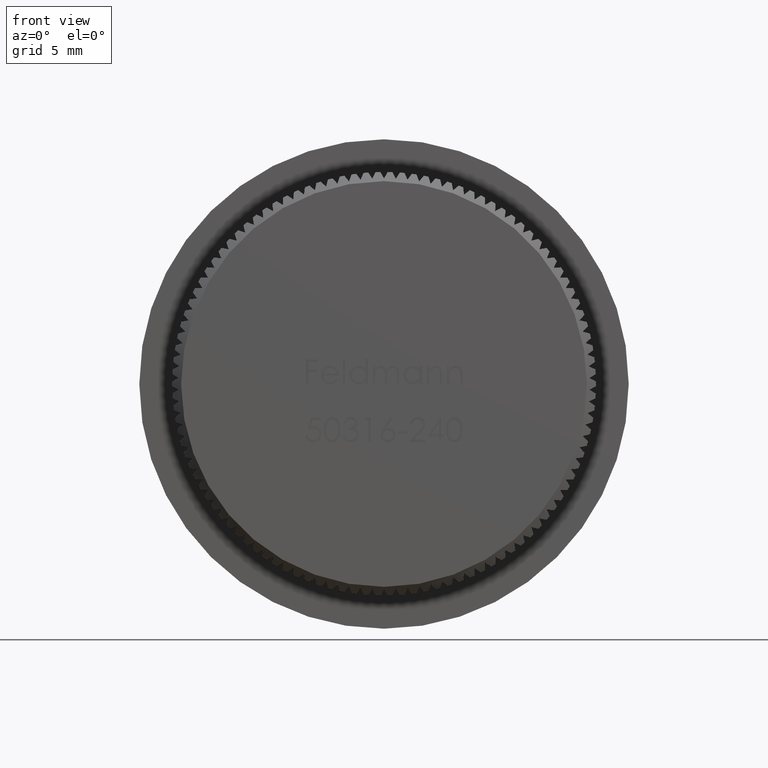
[diagram: clean part render]
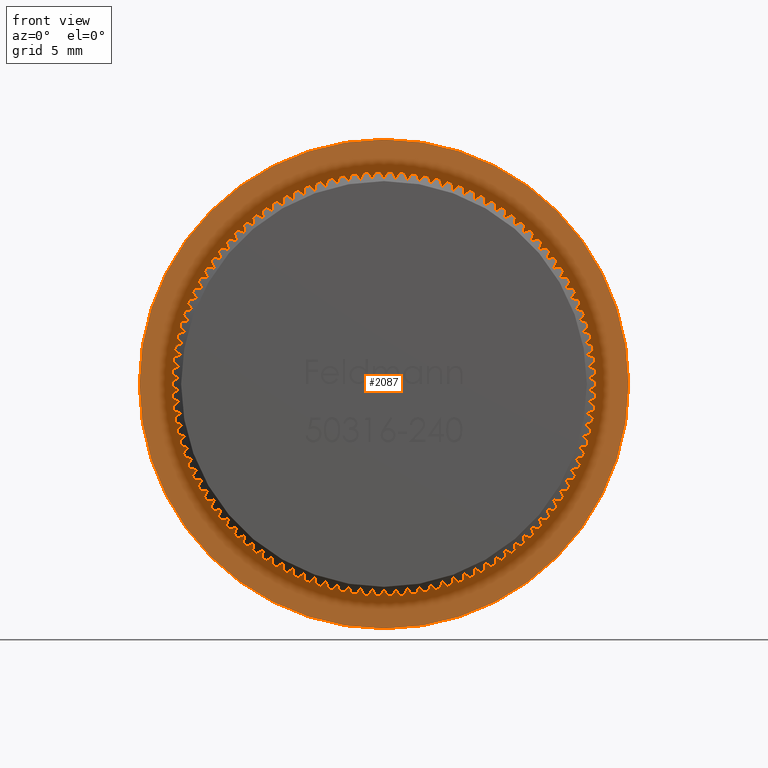
[diagram: same view with one face highlighted and labeled with its STEP entity id]
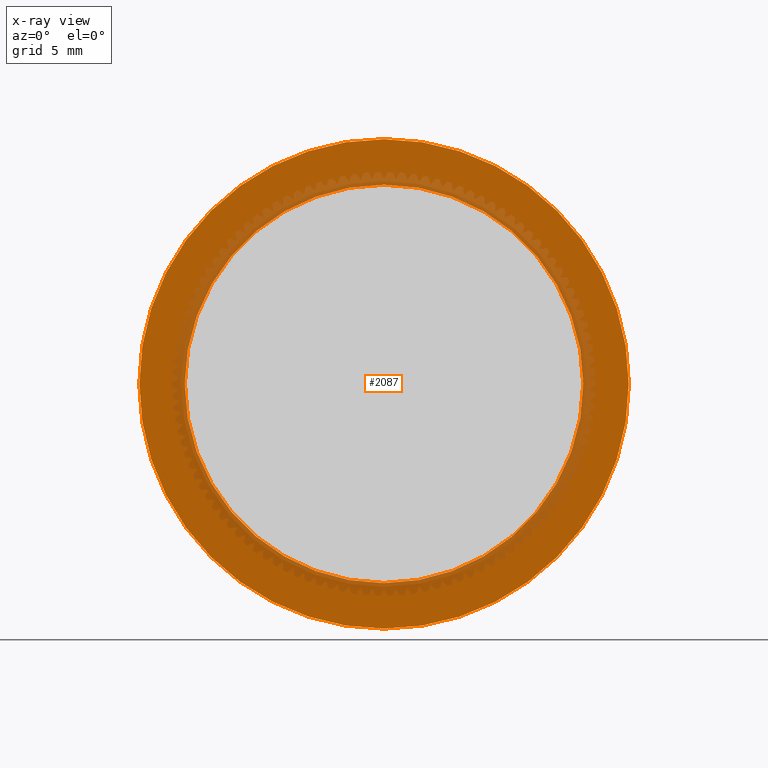
[diagram: x-ray of the same camera — body ghosted, the highlighted face saturated]
A machine part, front view. The second image highlights one B-rep face of the part: STEP entity #2087.
The next image is the same camera in x-ray: the body ghosted, the highlighted face saturated — about 23% of this face is hidden behind the body in this view.
In plain terms, the highlighted planar face has unit normal (0, -1, -0).
Its self-contained STEP definition (entity closure, byte-faithful):
#712 = VERTEX_POINT ( 'NONE', #13868 ) ;
#2087 = ADVANCED_FACE ( 'NONE', ( #10606, #19739 ), #22100, .T. ) ;
#2604 = EDGE_CURVE ( 'NONE', #712, #7014, #24415, .T. ) ;
#3321 = DIRECTION ( 'NONE',  ( 0.0000000000000000000, -1.000000000000000000, -0.0000000000000000000 ) ) ;
#3363 = AXIS2_PLACEMENT_3D ( 'NONE', #20421, #7273, #9156 ) ;
#3727 = CARTESIAN_POINT ( 'NONE',  ( 1.383850883036509300E-015, 7.000000000000000900, 10.95000000000000100 ) ) ;
#4809 = AXIS2_PLACEMENT_3D ( 'NONE', #11442, #13314, #20898 ) ;
#5323 = EDGE_CURVE ( 'NONE', #14627, #6722, #21172, .T. ) ;
#6237 = DIRECTION ( 'NONE',  ( 0.0000000000000000000, 0.0000000000000000000, -1.000000000000000000 ) ) ;
#6255 = ORIENTED_EDGE ( 'NONE', *, *, #2604, .T. ) ;
#6722 = VERTEX_POINT ( 'NONE', #23988 ) ;
#7014 = VERTEX_POINT ( 'NONE', #15273 ) ;
#7273 = DIRECTION ( 'NONE',  ( -0.0000000000000000000, -1.000000000000000000, -0.0000000000000000000 ) ) ;
#7597 = CIRCLE ( 'NONE', #3363, 13.44999999999999900 ) ;
#8685 = CIRCLE ( 'NONE', #4809, 10.95000000000000100 ) ;
#8787 = CARTESIAN_POINT ( 'NONE',  ( 10.95000000000000100, 7.000000000000000900, 0.0000000000000000000 ) ) ;
#9156 = DIRECTION ( 'NONE',  ( 0.0000000000000000000, 0.0000000000000000000, -1.000000000000000000 ) ) ;
#10107 = ORIENTED_EDGE ( 'NONE', *, *, #18368, .T. ) ;
#10606 = FACE_OUTER_BOUND ( 'NONE', #12108, .T. ) ;
#11442 = CARTESIAN_POINT ( 'NONE',  ( 0.0000000000000000000, 7.000000000000000900, 0.0000000000000000000 ) ) ;
#12108 = EDGE_LOOP ( 'NONE', ( #10107, #6255 ) ) ;
#13279 = AXIS2_PLACEMENT_3D ( 'NONE', #8787, #3321, #20306 ) ;
#13314 = DIRECTION ( 'NONE',  ( -0.0000000000000000000, -1.000000000000000000, -0.0000000000000000000 ) ) ;
#13868 = CARTESIAN_POINT ( 'NONE',  ( 1.647149944853190000E-015, 7.000000000000000000, 13.44999999999999900 ) ) ;
#14442 = CARTESIAN_POINT ( 'NONE',  ( 0.0000000000000000000, 7.000000000000000000, 0.0000000000000000000 ) ) ;
#14537 = AXIS2_PLACEMENT_3D ( 'NONE', #14442, #16598, #18250 ) ;
#14627 = VERTEX_POINT ( 'NONE', #3727 ) ;
#15273 = CARTESIAN_POINT ( 'NONE',  ( 0.0000000000000000000, 7.000000000000000000, -13.44999999999999900 ) ) ;
#16598 = DIRECTION ( 'NONE',  ( -0.0000000000000000000, -1.000000000000000000, -0.0000000000000000000 ) ) ;
#16800 = AXIS2_PLACEMENT_3D ( 'NONE', #17430, #22920, #6237 ) ;
#17102 = EDGE_LOOP ( 'NONE', ( #17810, #19442 ) ) ;
#17430 = CARTESIAN_POINT ( 'NONE',  ( 0.0000000000000000000, 7.000000000000000900, 0.0000000000000000000 ) ) ;
#17810 = ORIENTED_EDGE ( 'NONE', *, *, #20299, .F. ) ;
#18250 = DIRECTION ( 'NONE',  ( 0.0000000000000000000, 0.0000000000000000000, -1.000000000000000000 ) ) ;
#18368 = EDGE_CURVE ( 'NONE', #7014, #712, #7597, .T. ) ;
#19442 = ORIENTED_EDGE ( 'NONE', *, *, #5323, .F. ) ;
#19739 = FACE_BOUND ( 'NONE', #17102, .T. ) ;
#20299 = EDGE_CURVE ( 'NONE', #6722, #14627, #8685, .T. ) ;
#20306 = DIRECTION ( 'NONE',  ( 0.0000000000000000000, 0.0000000000000000000, -1.000000000000000000 ) ) ;
#20421 = CARTESIAN_POINT ( 'NONE',  ( 0.0000000000000000000, 7.000000000000000000, 0.0000000000000000000 ) ) ;
#20898 = DIRECTION ( 'NONE',  ( 0.0000000000000000000, 0.0000000000000000000, -1.000000000000000000 ) ) ;
#21172 = CIRCLE ( 'NONE', #16800, 10.95000000000000100 ) ;
#22100 = PLANE ( 'NONE',  #13279 ) ;
#22920 = DIRECTION ( 'NONE',  ( -0.0000000000000000000, -1.000000000000000000, -0.0000000000000000000 ) ) ;
#23988 = CARTESIAN_POINT ( 'NONE',  ( 0.0000000000000000000, 7.000000000000000900, -10.95000000000000100 ) ) ;
#24415 = CIRCLE ( 'NONE', #14537, 13.44999999999999900 ) ;